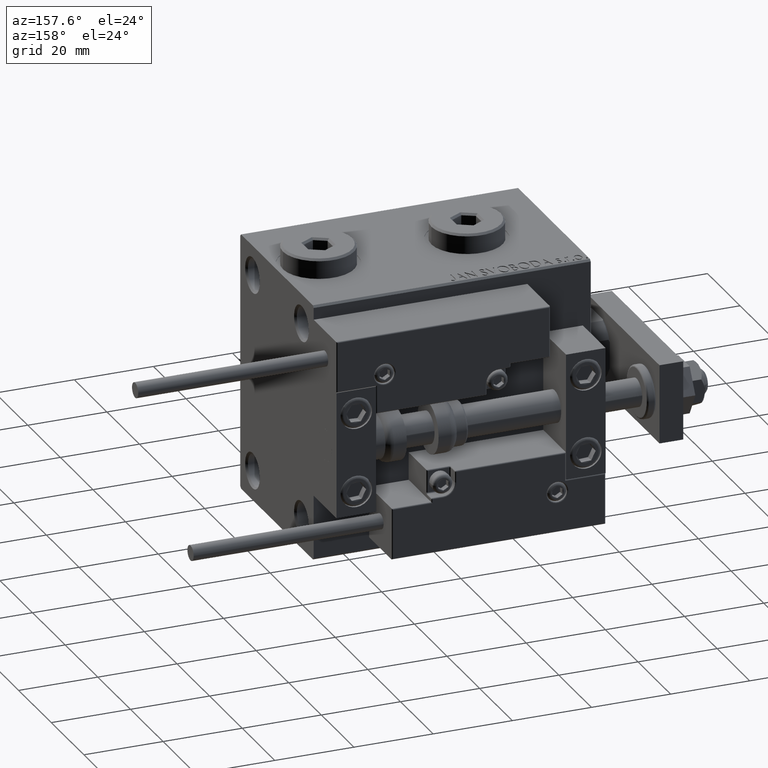
[diagram: clean part render]
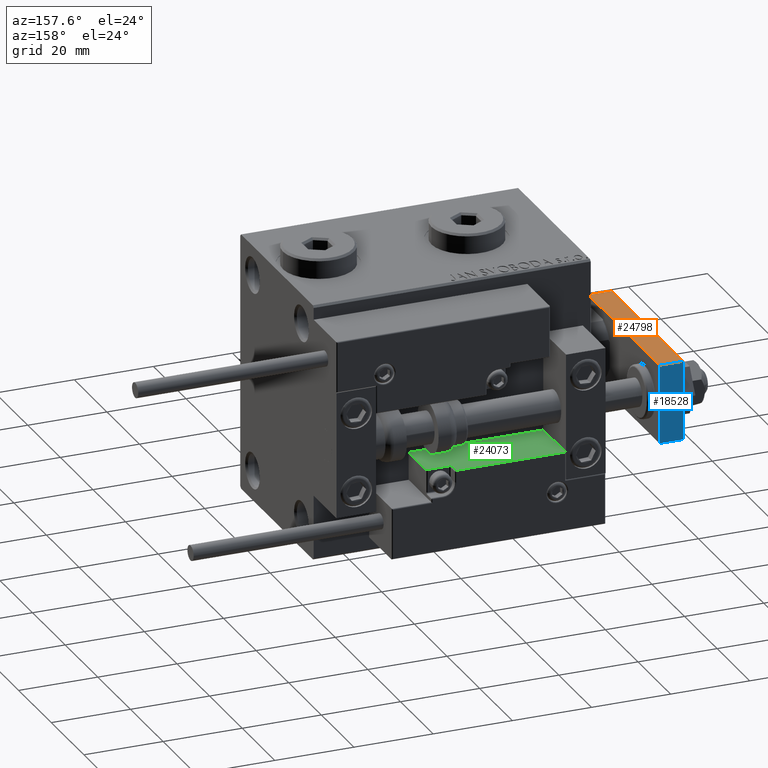
[diagram: same view with three faces highlighted in distinct colors, each labeled with its STEP entity id]
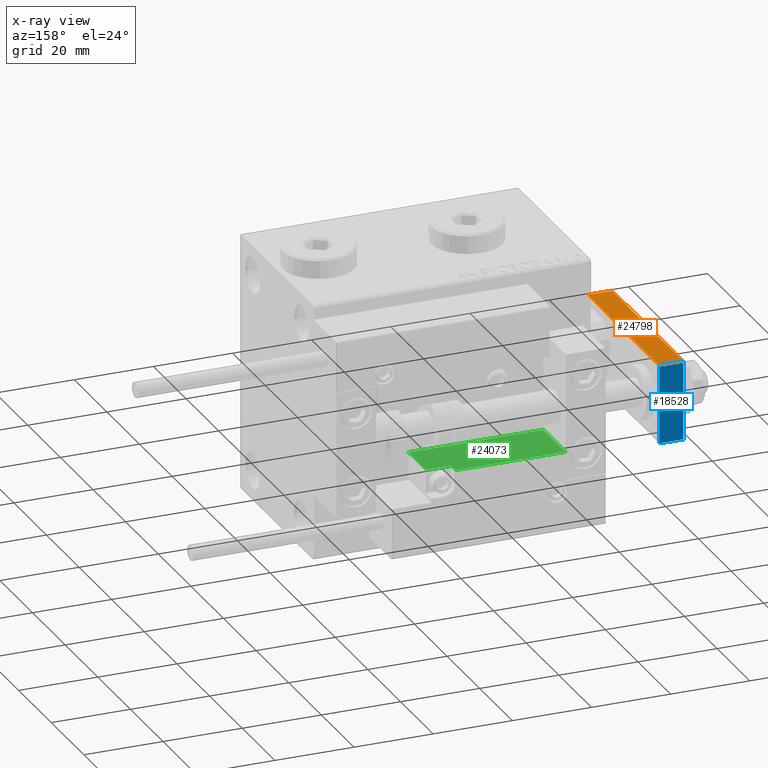
[diagram: x-ray of the same camera — body ghosted, the three highlighted faces saturated]
A machine part, auxiliary view with three faces highlighted in distinct colors.
The next image is the same camera in x-ray (body ghosted, the three faces saturated) — at least one of them is partly hidden behind the body in this view.
Their STEP definitions:

[orange] entity #24798 — the highlighted planar face has unit normal (-0, -0, -1).
#4058 = CARTESIAN_POINT ( 'NONE',  ( 10.00000000000000533, 4.239999999999986890, 0.000000000000000000 ) ) ;
#7125 = CARTESIAN_POINT ( 'NONE',  ( 10.00000000000000178, 48.00000000000000000, 0.000000000000000000 ) ) ;
#8552 = EDGE_LOOP ( 'NONE', ( #22342, #51729, #8572, #26074 ) ) ;
#8572 = ORIENTED_EDGE ( 'NONE', *, *, #42847, .T. ) ;
#9193 = CARTESIAN_POINT ( 'NONE',  ( 10.00000000000000533, 0.000000000000000000, 6.000000000000000000 ) ) ;
#10058 = LINE ( 'NONE', #26006, #34682 ) ;
#10652 = VECTOR ( 'NONE', #25405, 1000.000000000000000 ) ;
#12627 = VERTEX_POINT ( 'NONE', #52314 ) ;
#15001 = AXIS2_PLACEMENT_3D ( 'NONE', #22388, #30613, #29825 ) ;
#15930 = DIRECTION ( 'NONE',  ( -0.000000000000000000, -0.000000000000000000, -1.000000000000000000 ) ) ;
#17274 = CARTESIAN_POINT ( 'NONE',  ( 10.00000000000000533, 0.000000000000000000, 0.000000000000000000 ) ) ;
#18464 = EDGE_CURVE ( 'NONE', #12627, #47953, #45617, .T. ) ;
#18693 = VECTOR ( 'NONE', #15930, 1000.000000000000000 ) ;
#21773 = DIRECTION ( 'NONE',  ( 0.000000000000000000, 0.000000000000000000, -1.000000000000000000 ) ) ;
#22342 = ORIENTED_EDGE ( 'NONE', *, *, #18464, .F. ) ;
#22388 = CARTESIAN_POINT ( 'NONE',  ( 10.00000000000000533, 0.000000000000000000, 6.000000000000000000 ) ) ;
#24798 = ADVANCED_FACE ( 'NONE', ( #30860 ), #46588, .F. ) ;
#25405 = DIRECTION ( 'NONE',  ( -7.228014483236695816E-17, 1.000000000000000000, 0.000000000000000000 ) ) ;
#26006 = CARTESIAN_POINT ( 'NONE',  ( 10.00000000000000533, 4.239999999999986890, 6.000000000000000000 ) ) ;
#26074 = ORIENTED_EDGE ( 'NONE', *, *, #32574, .F. ) ;
#29825 = DIRECTION ( 'NONE',  ( 7.228014483236695816E-17, -1.000000000000000000, 0.000000000000000000 ) ) ;
#29935 = EDGE_CURVE ( 'NONE', #12627, #41515, #10058, .T. ) ;
#30613 = DIRECTION ( 'NONE',  ( -1.000000000000000000, -7.228014483236695816E-17, 0.000000000000000000 ) ) ;
#30860 = FACE_OUTER_BOUND ( 'NONE', #8552, .T. ) ;
#32415 = LINE ( 'NONE', #17274, #33980 ) ;
#32574 = EDGE_CURVE ( 'NONE', #47953, #41698, #52335, .T. ) ;
#33980 = VECTOR ( 'NONE', #48927, 1000.000000000000000 ) ;
#34682 = VECTOR ( 'NONE', #21773, 1000.000000000000000 ) ;
#35580 = CARTESIAN_POINT ( 'NONE',  ( 10.00000000000000178, 48.00000000000000000, 6.000000000000000000 ) ) ;
#40948 = CARTESIAN_POINT ( 'NONE',  ( 10.00000000000000178, 48.00000000000000000, 6.000000000000000000 ) ) ;
#41515 = VERTEX_POINT ( 'NONE', #4058 ) ;
#41698 = VERTEX_POINT ( 'NONE', #7125 ) ;
#42847 = EDGE_CURVE ( 'NONE', #41515, #41698, #32415, .T. ) ;
#45617 = LINE ( 'NONE', #9193, #10652 ) ;
#46588 = PLANE ( 'NONE',  #15001 ) ;
#47953 = VERTEX_POINT ( 'NONE', #40948 ) ;
#48927 = DIRECTION ( 'NONE',  ( -7.228014483236695816E-17, 1.000000000000000000, 0.000000000000000000 ) ) ;
#51729 = ORIENTED_EDGE ( 'NONE', *, *, #29935, .T. ) ;
#52314 = CARTESIAN_POINT ( 'NONE',  ( 10.00000000000000533, 4.239999999999986890, 6.000000000000000000 ) ) ;
#52335 = LINE ( 'NONE', #35580, #18693 ) ;

[blue] entity #18528 — the highlighted planar face has unit normal (0, -1, 0).
#1323 = AXIS2_PLACEMENT_3D ( 'NONE', #23230, #35176, #26439 ) ;
#2404 = CARTESIAN_POINT ( 'NONE',  ( -10.00000000000000000, 48.00000000000000000, 6.000000000000000000 ) ) ;
#3124 = EDGE_CURVE ( 'NONE', #41698, #41327, #52297, .T. ) ;
#5484 = ORIENTED_EDGE ( 'NONE', *, *, #35691, .F. ) ;
#7125 = CARTESIAN_POINT ( 'NONE',  ( 10.00000000000000178, 48.00000000000000000, 0.000000000000000000 ) ) ;
#11242 = CARTESIAN_POINT ( 'NONE',  ( 10.00000000000000178, 48.00000000000000000, 6.000000000000000000 ) ) ;
#11480 = LINE ( 'NONE', #31933, #35631 ) ;
#14460 = LINE ( 'NONE', #11242, #49251 ) ;
#15930 = DIRECTION ( 'NONE',  ( -0.000000000000000000, -0.000000000000000000, -1.000000000000000000 ) ) ;
#16377 = EDGE_LOOP ( 'NONE', ( #31070, #28640, #5484, #36440 ) ) ;
#18528 = ADVANCED_FACE ( 'NONE', ( #35704 ), #18992, .F. ) ;
#18693 = VECTOR ( 'NONE', #15930, 1000.000000000000000 ) ;
#18992 = PLANE ( 'NONE',  #1323 ) ;
#23230 = CARTESIAN_POINT ( 'NONE',  ( 10.00000000000000178, 48.00000000000000000, 6.000000000000000000 ) ) ;
#23994 = CARTESIAN_POINT ( 'NONE',  ( -10.00000000000000000, 48.00000000000000000, 0.000000000000000000 ) ) ;
#25119 = VECTOR ( 'NONE', #31821, 1000.000000000000000 ) ;
#26439 = DIRECTION ( 'NONE',  ( 0.000000000000000000, -0.000000000000000000, -1.000000000000000000 ) ) ;
#28640 = ORIENTED_EDGE ( 'NONE', *, *, #38354, .F. ) ;
#31070 = ORIENTED_EDGE ( 'NONE', *, *, #3124, .T. ) ;
#31821 = DIRECTION ( 'NONE',  ( -1.000000000000000000, 0.000000000000000000, 0.000000000000000000 ) ) ;
#31933 = CARTESIAN_POINT ( 'NONE',  ( -10.00000000000000000, 48.00000000000000000, 6.000000000000000000 ) ) ;
#32574 = EDGE_CURVE ( 'NONE', #47953, #41698, #52335, .T. ) ;
#35176 = DIRECTION ( 'NONE',  ( 0.000000000000000000, -1.000000000000000000, 0.000000000000000000 ) ) ;
#35580 = CARTESIAN_POINT ( 'NONE',  ( 10.00000000000000178, 48.00000000000000000, 6.000000000000000000 ) ) ;
#35631 = VECTOR ( 'NONE', #50392, 1000.000000000000000 ) ;
#35691 = EDGE_CURVE ( 'NONE', #47953, #45712, #14460, .T. ) ;
#35704 = FACE_OUTER_BOUND ( 'NONE', #16377, .T. ) ;
#36440 = ORIENTED_EDGE ( 'NONE', *, *, #32574, .T. ) ;
#38354 = EDGE_CURVE ( 'NONE', #45712, #41327, #11480, .T. ) ;
#39681 = DIRECTION ( 'NONE',  ( -1.000000000000000000, 0.000000000000000000, 0.000000000000000000 ) ) ;
#40338 = CARTESIAN_POINT ( 'NONE',  ( 10.00000000000000178, 48.00000000000000000, 0.000000000000000000 ) ) ;
#40948 = CARTESIAN_POINT ( 'NONE',  ( 10.00000000000000178, 48.00000000000000000, 6.000000000000000000 ) ) ;
#41327 = VERTEX_POINT ( 'NONE', #23994 ) ;
#41698 = VERTEX_POINT ( 'NONE', #7125 ) ;
#45712 = VERTEX_POINT ( 'NONE', #2404 ) ;
#47953 = VERTEX_POINT ( 'NONE', #40948 ) ;
#49251 = VECTOR ( 'NONE', #39681, 1000.000000000000000 ) ;
#50392 = DIRECTION ( 'NONE',  ( -0.000000000000000000, -0.000000000000000000, -1.000000000000000000 ) ) ;
#52297 = LINE ( 'NONE', #40338, #25119 ) ;
#52335 = LINE ( 'NONE', #35580, #18693 ) ;

[green] entity #24073 — the highlighted planar face has unit normal (-0, -0, -1).
#1627 = ORIENTED_EDGE ( 'NONE', *, *, #11963, .T. ) ;
#2762 = LINE ( 'NONE', #18989, #41844 ) ;
#2822 = DIRECTION ( 'NONE',  ( 0.000000000000000000, 1.000000000000000000, 0.000000000000000000 ) ) ;
#3088 = CARTESIAN_POINT ( 'NONE',  ( 10.70000000000000107, 3.252606517456513302E-15, 11.29999999999999893 ) ) ;
#3515 = VERTEX_POINT ( 'NONE', #9952 ) ;
#3834 = CARTESIAN_POINT ( 'NONE',  ( 11.29999999999999893, 3.252606517456513302E-15, 11.29999999999999893 ) ) ;
#4358 = DIRECTION ( 'NONE',  ( 0.000000000000000000, 0.000000000000000000, 1.000000000000000000 ) ) ;
#6217 = ORIENTED_EDGE ( 'NONE', *, *, #47019, .T. ) ;
#7393 = EDGE_CURVE ( 'NONE', #7566, #3515, #52294, .T. ) ;
#7566 = VERTEX_POINT ( 'NONE', #23266 ) ;
#9028 = VECTOR ( 'NONE', #36870, 1000.000000000000000 ) ;
#9952 = CARTESIAN_POINT ( 'NONE',  ( -16.99999999999999289, 3.252606517456513302E-15, 13.70000000000000107 ) ) ;
#10028 = FACE_OUTER_BOUND ( 'NONE', #17922, .T. ) ;
#10856 = VERTEX_POINT ( 'NONE', #3088 ) ;
#11067 = PLANE ( 'NONE',  #47273 ) ;
#11963 = EDGE_CURVE ( 'NONE', #34132, #19072, #32840, .T. ) ;
#12129 = EDGE_CURVE ( 'NONE', #3515, #34132, #22455, .T. ) ;
#12233 = VECTOR ( 'NONE', #16010, 1000.000000000000000 ) ;
#14277 = LINE ( 'NONE', #23279, #51093 ) ;
#14990 = DIRECTION ( 'NONE',  ( -1.000000000000000000, 0.000000000000000000, -0.000000000000000000 ) ) ;
#16010 = DIRECTION ( 'NONE',  ( -0.000000000000000000, -0.000000000000000000, -1.000000000000000000 ) ) ;
#16354 = VECTOR ( 'NONE', #33100, 1000.000000000000000 ) ;
#17922 = EDGE_LOOP ( 'NONE', ( #26281, #23720, #26190, #6217, #19730, #24315, #1627 ) ) ;
#17953 = CARTESIAN_POINT ( 'NONE',  ( -16.99999999999999289, 3.252606517456513302E-15, 14.00000000000000000 ) ) ;
#18989 = CARTESIAN_POINT ( 'NONE',  ( 11.00000000000000000, 3.252606517456513302E-15, 10.69999999999999929 ) ) ;
#19072 = VERTEX_POINT ( 'NONE', #38012 ) ;
#19307 = DIRECTION ( 'NONE',  ( 0.000000000000000000, -0.000000000000000000, 1.000000000000000000 ) ) ;
#19730 = ORIENTED_EDGE ( 'NONE', *, *, #7393, .T. ) ;
#20612 = VECTOR ( 'NONE', #46393, 1000.000000000000000 ) ;
#20795 = VERTEX_POINT ( 'NONE', #23752 ) ;
#20853 = DIRECTION ( 'NONE',  ( -0.000000000000000000, -1.000000000000000000, -0.000000000000000000 ) ) ;
#21425 = CARTESIAN_POINT ( 'NONE',  ( -16.99999999999999289, 3.252606517456513302E-15, 0.000000000000000000 ) ) ;
#22455 = LINE ( 'NONE', #17953, #20612 ) ;
#23266 = CARTESIAN_POINT ( 'NONE',  ( 10.70000000000000107, 3.252606517456513302E-15, 13.70000000000000107 ) ) ;
#23279 = CARTESIAN_POINT ( 'NONE',  ( 10.70000000000000107, 3.252606517456513302E-15, 14.00000000000000000 ) ) ;
#23663 = CIRCLE ( 'NONE', #46587, 0.5999999999999998668 ) ;
#23720 = ORIENTED_EDGE ( 'NONE', *, *, #48504, .T. ) ;
#23752 = CARTESIAN_POINT ( 'NONE',  ( 11.29999999999999893, 3.252606517456513302E-15, 10.69999999999999929 ) ) ;
#24073 = ADVANCED_FACE ( 'NONE', ( #10028 ), #11067, .F. ) ;
#24315 = ORIENTED_EDGE ( 'NONE', *, *, #12129, .T. ) ;
#26190 = ORIENTED_EDGE ( 'NONE', *, *, #29226, .F. ) ;
#26281 = ORIENTED_EDGE ( 'NONE', *, *, #52441, .F. ) ;
#26748 = CARTESIAN_POINT ( 'NONE',  ( -16.99999999999999289, 3.252606517456513302E-15, 14.00000000000000000 ) ) ;
#29019 = LINE ( 'NONE', #45245, #12233 ) ;
#29226 = EDGE_CURVE ( 'NONE', #10856, #20795, #23663, .T. ) ;
#30980 = DIRECTION ( 'NONE',  ( 0.000000000000000000, -0.000000000000000000, 1.000000000000000000 ) ) ;
#32840 = LINE ( 'NONE', #21425, #16354 ) ;
#33100 = DIRECTION ( 'NONE',  ( 1.000000000000000000, 0.000000000000000000, 0.000000000000000000 ) ) ;
#34132 = VERTEX_POINT ( 'NONE', #43717 ) ;
#36870 = DIRECTION ( 'NONE',  ( -1.000000000000000000, 0.000000000000000000, -0.000000000000000000 ) ) ;
#38012 = CARTESIAN_POINT ( 'NONE',  ( 16.99999999999999289, 3.252606517456513302E-15, 0.000000000000000000 ) ) ;
#38673 = VERTEX_POINT ( 'NONE', #39593 ) ;
#39593 = CARTESIAN_POINT ( 'NONE',  ( 16.99999999999999289, 3.252606517456513302E-15, 10.69999999999999929 ) ) ;
#40862 = CARTESIAN_POINT ( 'NONE',  ( -16.99999999999999289, 3.252606517456513302E-15, 13.70000000000000107 ) ) ;
#41844 = VECTOR ( 'NONE', #14990, 1000.000000000000000 ) ;
#43717 = CARTESIAN_POINT ( 'NONE',  ( -16.99999999999999289, 3.252606517456513302E-15, 0.000000000000000000 ) ) ;
#45245 = CARTESIAN_POINT ( 'NONE',  ( 16.99999999999999289, 3.252606517456513302E-15, 14.00000000000000000 ) ) ;
#46393 = DIRECTION ( 'NONE',  ( -0.000000000000000000, -0.000000000000000000, -1.000000000000000000 ) ) ;
#46587 = AXIS2_PLACEMENT_3D ( 'NONE', #3834, #20853, #4358 ) ;
#47019 = EDGE_CURVE ( 'NONE', #10856, #7566, #14277, .T. ) ;
#47273 = AXIS2_PLACEMENT_3D ( 'NONE', #26748, #2822, #30980 ) ;
#48504 = EDGE_CURVE ( 'NONE', #38673, #20795, #2762, .T. ) ;
#51093 = VECTOR ( 'NONE', #19307, 1000.000000000000000 ) ;
#52294 = LINE ( 'NONE', #40862, #9028 ) ;
#52441 = EDGE_CURVE ( 'NONE', #38673, #19072, #29019, .T. ) ;